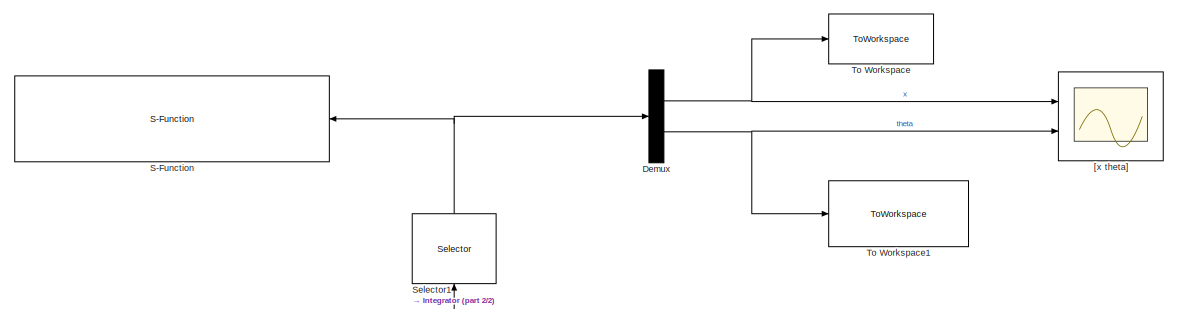
[diagram: root canvas - part 1/2, top right region]
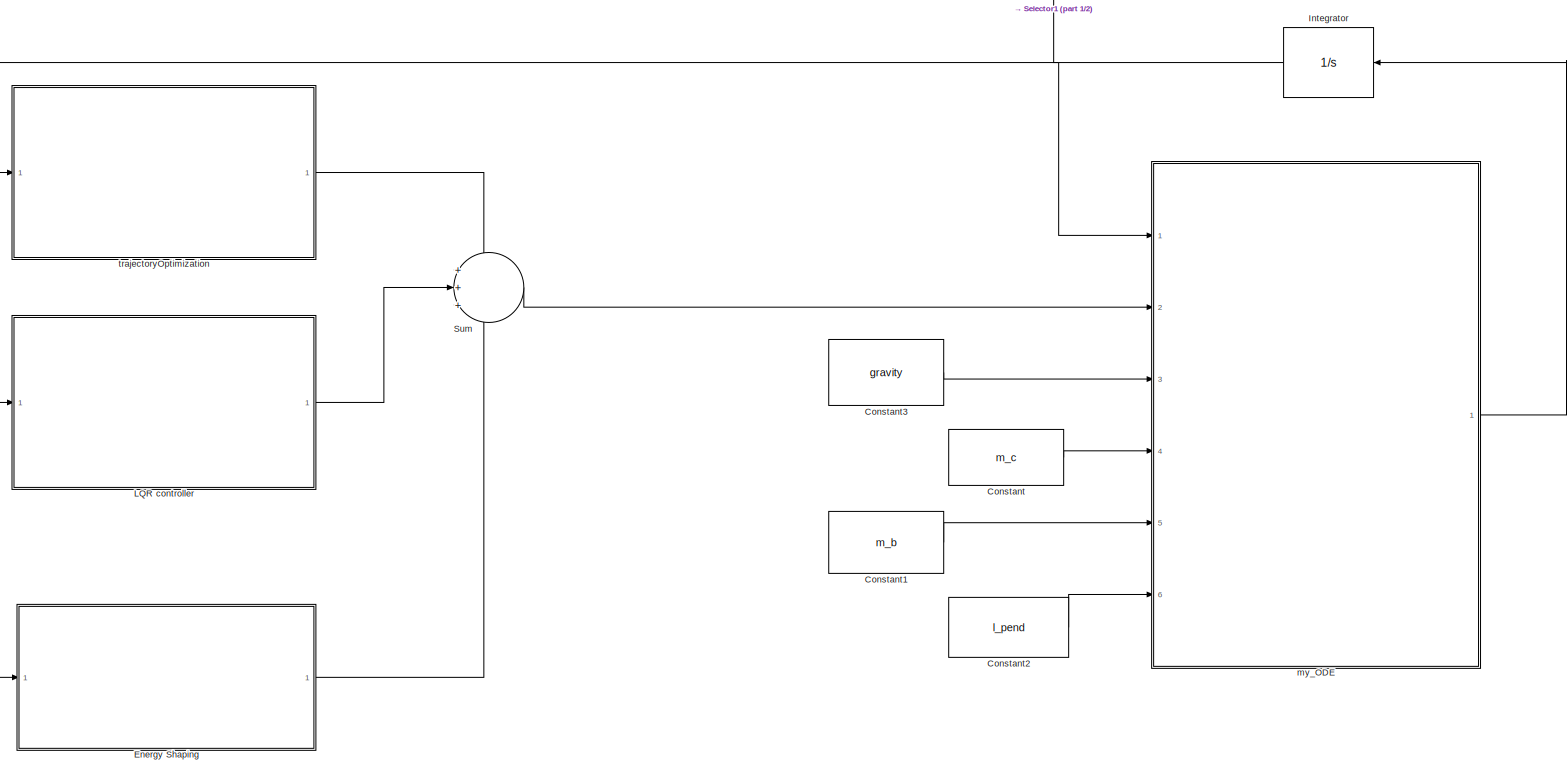
[diagram: root canvas - part 2/2, full width, middle band]
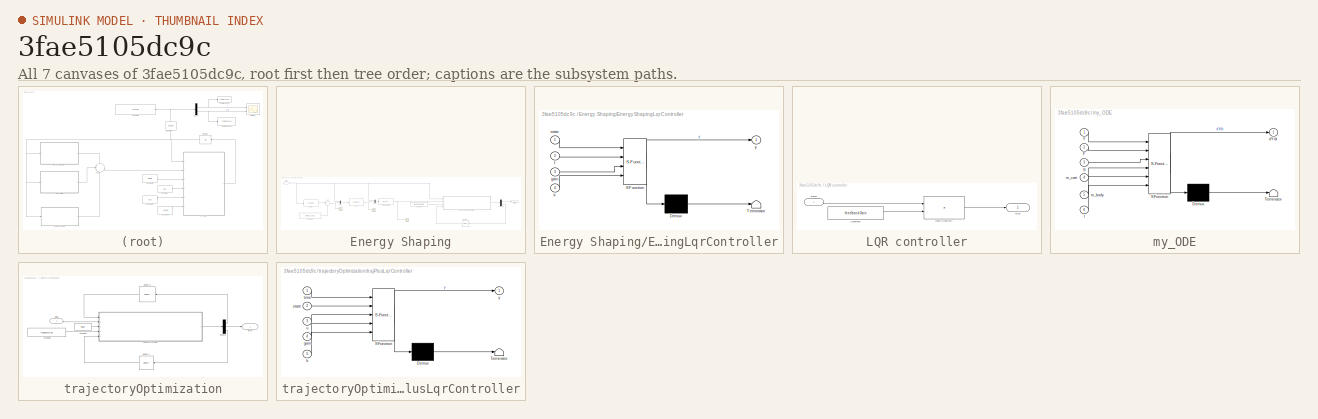
[diagram: thumbnail index - all 7 canvases of the model, root first then tree order]
MODEL slx_3fae5105dc9c
KIND model
CONFIG AbsTol = auto
CONFIG FixedStep = 4/149
CONFIG MaxStep = 0.0001
CONFIG MinStep = auto
CONFIG RelTol = 1e-3
CONFIG SampleTimeConstraint = Unconstrained
CONFIG Solver = ode45
CONFIG SolverMode = Auto
CONFIG SolverName = ode45
CONFIG StartTime = 0.0
CONFIG StopTime = 20
BLOCK [Constant] Constant
  Value = m_c
BLOCK [Constant] Constant1
  Value = m_b
BLOCK [Constant] Constant2
  Value = l_pend
BLOCK [Constant] Constant3
  Value = gravity
BLOCK [Demux] Demux
  DisplayOption = bar
  Outputs = 2
  Ports = [1, 2]
BLOCK [SubSystem] Energy Shaping
  Commented = on
  Ports = [1, 1]
  RequestExecContextInheritance = off
  Variant = off
BLOCK [Constant] Energy Shaping/Constant4
  Value = Energy_desired
BLOCK [Constant] Energy Shaping/Constant5
  Value = feedbackGain
BLOCK [Demux] Energy Shaping/Demux1
  DisplayOption = bar
  Outputs = 2
  Ports = [1, 2]
BLOCK [Fcn] Energy Shaping/Energy
  Expr = (m_b*u(4)^2*l_pend^2)/2 - m_b*cos(u(3))*u(4)*u(2)*l_pend \n+ (m_b*u(2)^2)/2 - m_b*gravity*l_pend*cos(u(3))
BLOCK [SubSystem] Energy Shaping/EnergyShapingLqrController
  ErrorFcn = Stateflow.Translate.translate
  PermitHierarchicalResolution = ExplicitOnly
  Ports = [4, 1]
  RequestExecContextInheritance = off
  SFBlockType = MATLAB Function
  TreatAsAtomicUnit = on
  Variant = off
BLOCK [Demux] Energy Shaping/EnergyShapingLqrController/ Demux 
  Outputs = 1
  Ports = [1, 1]
BLOCK [S-Function] Energy Shaping/EnergyShapingLqrController/ SFunction 
  EnableBusSupport = on
  FunctionName = sf_sfun
  PortCounts = [4 2]
  Ports = [4, 2]
  SFunctionDeploymentMode = off
  Tag = Stateflow S-Function cartPole 3
BLOCK [Terminator] Energy Shaping/EnergyShapingLqrController/ Terminator 
BLOCK [Inport] Energy Shaping/EnergyShapingLqrController/f
  IconDisplay = Port number
  Port = 2
BLOCK [Inport] Energy Shaping/EnergyShapingLqrController/gain
  IconDisplay = Port number
  Port = 3
BLOCK [Inport] Energy Shaping/EnergyShapingLqrController/k
  IconDisplay = Port number
  Port = 4
BLOCK [Inport] Energy Shaping/EnergyShapingLqrController/state
  IconDisplay = Port number
BLOCK [Outport] Energy Shaping/EnergyShapingLqrController/y
  IconDisplay = Port number
BLOCK [Memory] Energy Shaping/Memory1
  X0 = 1
BLOCK [Mux] Energy Shaping/Mux
  DisplayOption = bar
  Inputs = 2
  Ports = [2, 1]
BLOCK [Mux] Energy Shaping/Mux1
  DisplayOption = bar
  Inputs = 2
  Ports = [2, 1]
BLOCK [Scope] Energy Shaping/Scope
  Ports = [1]
  ScopeSpecificationString = Simulink.scopes.TimeScopeBlockCfg('CurrentConfiguration', extmgr.ConfigurationSet(extmgr.Configuration('Core','General UI',true),extmgr.Configuration('Core','Source UI',true),extmgr.Configuration('Sources','WiredSimulink',true,'DataLoggingVariableName','ScopeData1'),extmgr.Configuration('Visuals','Time Domain',true,'SerializedDisplays',{struct('MinYLimReal','-18.54663','MaxYLimReal','20.65936','YL...<+1406ch>
BLOCK [Scope] Energy Shaping/Scope1
  Ports = [1]
  ScopeSpecificationString = Simulink.scopes.TimeScopeBlockCfg('CurrentConfiguration', extmgr.ConfigurationSet(extmgr.Configuration('Core','General UI',true),extmgr.Configuration('Core','Source UI',true),extmgr.Configuration('Sources','WiredSimulink',true,'DataLoggingVariableName','ScopeData2'),extmgr.Configuration('Visuals','Time Domain',true,'SerializedDisplays',{struct('MinYLimReal','-0.98403','MaxYLimReal','-0.95377','YLa...<+1408ch>
BLOCK [Scope] Energy Shaping/Scope2
  Ports = [1]
  ScopeSpecificationString = Simulink.scopes.TimeScopeBlockCfg('CurrentConfiguration', extmgr.ConfigurationSet(extmgr.Configuration('Core','General UI',true),extmgr.Configuration('Core','Source UI',true),extmgr.Configuration('Sources','WiredSimulink',true,'DataLoggingVariableName','ScopeData3'),extmgr.Configuration('Visuals','Time Domain',true,'SerializedDisplays',{struct('MinYLimReal','-0.02489','MaxYLimReal','0.02353','YLab...<+1406ch>
BLOCK [Sum] Energy Shaping/Sum
  IconShape = round
  InputSameDT = off
  Inputs = |+-
  OutDataTypeStr = Inherit: Inherit via internal rule
  Ports = [2, 1]
  SaturateOnIntegerOverflow = off
BLOCK [Fcn] Energy Shaping/ddx
  Expr = k_E*u(4)*cos(u(3))*u(5) - kp*u(1) - kd*u(2)
BLOCK [Outport] Energy Shaping/force
  IconDisplay = Port number
BLOCK [Fcn] Energy Shaping/forceCalculation
  Expr = (m_b + m_c - m_b*cos(u(3))^2)*u(5) - gravity*m_b*sin(u(3))*cos(u(3)) + l_pend*m_b*u(4)^2*sin(u(3))
BLOCK [Inport] Energy Shaping/states
  IconDisplay = Port number
BLOCK [Integrator] Integrator
  InitialCondition = [x_initial, dx_initial, theta_initial, dtheta_initial]
  Ports = [1, 1]
BLOCK [SubSystem] LQR controller
  Ports = [1, 1]
  RequestExecContextInheritance = off
  Variant = off
BLOCK [Constant] LQR controller/Constant5
  Value = feedbackGain
BLOCK [Product] LQR controller/Matrix Multiply
  InputSameDT = off
  Multiplication = Matrix(*)
  OutDataTypeStr = Inherit: Inherit via internal rule
  Ports = [2, 1]
  RndMeth = Floor
  SaturateOnIntegerOverflow = off
BLOCK [Outport] LQR controller/force
  IconDisplay = Port number
BLOCK [Inport] LQR controller/states
  IconDisplay = Port number
BLOCK [S-Function] S-Function
  EnableBusSupport = off
  FunctionName = animation_cartPole
  Parameters = 0.01
  Ports = [1]
  SFunctionDeploymentMode = off
BLOCK [Selector] Selector1
  IndexOptions = Index vector (dialog)
  Indices = [1 3]
  InputPortWidth = 4
  OutputSizes = 1
  Ports = [1, 1]
BLOCK [Sum] Sum
  IconShape = round
  InputSameDT = off
  Inputs = +++
  OutDataTypeStr = Inherit: Inherit via internal rule
  Ports = [3, 1]
  SaturateOnIntegerOverflow = off
BLOCK [ToWorkspace] To Workspace
  FixptAsFi = on
  MaxDataPoints = inf
  Ports = [1]
  SampleTime = -1
  Save2DSignal = 3-D array (concatenate along third dimension)
  SaveFormat = Timeseries
  VariableName = xOut
BLOCK [ToWorkspace] To Workspace1
  FixptAsFi = on
  MaxDataPoints = inf
  Ports = [1]
  SampleTime = -1
  Save2DSignal = 3-D array (concatenate along third dimension)
  SaveFormat = Timeseries
  VariableName = thetaOut
BLOCK [Scope] [x theta]
  NumInputPorts = 2
  Ports = [2]
  ScopeSpecificationString = Simulink.scopes.TimeScopeBlockCfg('CurrentConfiguration', extmgr.ConfigurationSet(extmgr.Configuration('Core','General UI',true),extmgr.Configuration('Core','Source UI',true),extmgr.Configuration('Sources','WiredSimulink',true),extmgr.Configuration('Visuals','Time Domain',true,'SerializedDisplays',{struct('MinYLimReal','-15.12083','MaxYLimReal','9.43899','YLabelReal','','MinYLimMag','0.00000','Max...<+1377ch>
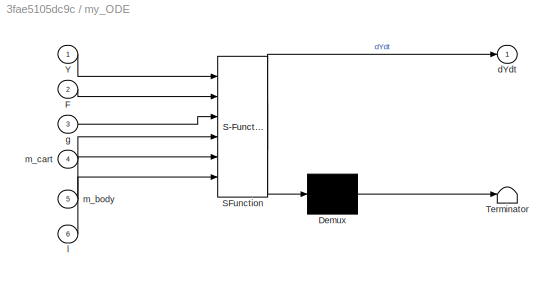
BLOCK [SubSystem] my_ODE
  ErrorFcn = Stateflow.Translate.translate
  PermitHierarchicalResolution = ExplicitOnly
  Ports = [6, 1]
  RequestExecContextInheritance = off
  SFBlockType = MATLAB Function
  TreatAsAtomicUnit = on
  Variant = off
BLOCK [Demux] my_ODE/ Demux 
  Outputs = 1
  Ports = [1, 1]
BLOCK [S-Function] my_ODE/ SFunction 
  EnableBusSupport = on
  FunctionName = sf_sfun
  PortCounts = [6 2]
  Ports = [6, 2]
  SFunctionDeploymentMode = off
  Tag = Stateflow S-Function cartPole 2
BLOCK [Terminator] my_ODE/ Terminator 
BLOCK [Inport] my_ODE/F
  IconDisplay = Port number
  Port = 2
BLOCK [Inport] my_ODE/Y
  IconDisplay = Port number
BLOCK [Outport] my_ODE/dYdt
  IconDisplay = Port number
BLOCK [Inport] my_ODE/g
  IconDisplay = Port number
  Port = 3
BLOCK [Inport] my_ODE/l
  IconDisplay = Port number
  Port = 6
BLOCK [Inport] my_ODE/m_body
  IconDisplay = Port number
  Port = 5
BLOCK [Inport] my_ODE/m_cart
  IconDisplay = Port number
  Port = 4
BLOCK [SubSystem] trajectoryOptimization
  Commented = on
  Ports = [1, 1]
  RequestExecContextInheritance = off
  Variant = off
BLOCK [Constant] trajectoryOptimization/Constant4
  Value = input
BLOCK [Constant] trajectoryOptimization/Constant5
  Value = feedbackGain
BLOCK [Demux] trajectoryOptimization/Demux1
  DisplayOption = bar
  Outputs = 3
  Ports = [1, 3]
BLOCK [Memory] trajectoryOptimization/Memory1
  X0 = 1
BLOCK [Memory] trajectoryOptimization/Memory2
BLOCK [Outport] trajectoryOptimization/force
  IconDisplay = Port number
BLOCK [Inport] trajectoryOptimization/states
  IconDisplay = Port number
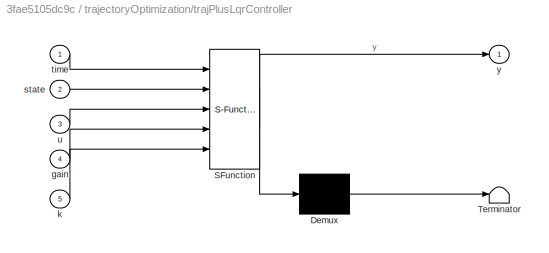
BLOCK [SubSystem] trajectoryOptimization/trajPlusLqrController
  ErrorFcn = Stateflow.Translate.translate
  PermitHierarchicalResolution = ExplicitOnly
  Ports = [5, 1]
  RequestExecContextInheritance = off
  SFBlockType = MATLAB Function
  TreatAsAtomicUnit = on
  Variant = off
BLOCK [Demux] trajectoryOptimization/trajPlusLqrController/ Demux 
  Outputs = 1
  Ports = [1, 1]
BLOCK [S-Function] trajectoryOptimization/trajPlusLqrController/ SFunction 
  EnableBusSupport = on
  FunctionName = sf_sfun
  PortCounts = [5 2]
  Ports = [5, 2]
  SFunctionDeploymentMode = off
  Tag = Stateflow S-Function cartPole 1
BLOCK [Terminator] trajectoryOptimization/trajPlusLqrController/ Terminator 
BLOCK [Inport] trajectoryOptimization/trajPlusLqrController/gain
  IconDisplay = Port number
  Port = 4
BLOCK [Inport] trajectoryOptimization/trajPlusLqrController/k
  IconDisplay = Port number
  Port = 5
BLOCK [Inport] trajectoryOptimization/trajPlusLqrController/state
  IconDisplay = Port number
  Port = 2
BLOCK [Inport] trajectoryOptimization/trajPlusLqrController/time
  IconDisplay = Port number
BLOCK [Inport] trajectoryOptimization/trajPlusLqrController/u
  IconDisplay = Port number
  Port = 3
BLOCK [Outport] trajectoryOptimization/trajPlusLqrController/y
  IconDisplay = Port number
LINE Constant1:1 -> my_ODE:5
LINE Constant2:1 -> my_ODE:6
LINE Constant3:1 -> my_ODE:3
LINE Constant:1 -> my_ODE:4
NET Demux:1 -> To Workspace:1, [x theta]:1
NET Demux:2 -> To Workspace1:1, [x theta]:2
LINE Energy Shaping/Constant4:1 -> Energy Shaping/Sum:2
LINE Energy Shaping/Constant5:1 -> Energy Shaping/EnergyShapingLqrController:3
LINE Energy Shaping/Demux1:1 -> Energy Shaping/force:1
LINE Energy Shaping/Demux1:2 -> Energy Shaping/Memory1:1
LINE Energy Shaping/Energy:1 -> Energy Shaping/Sum:1
LINE Energy Shaping/EnergyShapingLqrController:1 -> Energy Shaping/Demux1:1
LINE Energy Shaping/Memory1:1 -> Energy Shaping/EnergyShapingLqrController:4
LINE Energy Shaping/Mux1:1 -> Energy Shaping/forceCalculation:1
LINE Energy Shaping/Mux:1 -> Energy Shaping/ddx:1
NET Energy Shaping/Sum:1 -> Energy Shaping/Mux:2, Energy Shaping/Scope1:1
NET Energy Shaping/ddx:1 -> Energy Shaping/Mux1:2, Energy Shaping/Scope2:1
NET Energy Shaping/forceCalculation:1 -> Energy Shaping/EnergyShapingLqrController:2, Energy Shaping/Scope:1
NET Energy Shaping/states:1 -> Energy Shaping/Energy:1, Energy Shaping/EnergyShapingLqrController:1, Energy Shaping/Mux1:1, Energy Shaping/Mux:1
LINE Energy Shaping:1 -> Sum:3
NET Integrator:1 -> Energy Shaping:1, LQR controller:1, Selector1:1, my_ODE:1, trajectoryOptimization:1
LINE LQR controller/Constant5:1 -> LQR controller/Matrix Multiply:2
LINE LQR controller/Matrix Multiply:1 -> LQR controller/force:1
LINE LQR controller/states:1 -> LQR controller/Matrix Multiply:1
LINE LQR controller:1 -> Sum:2
NET Selector1:1 -> Demux:1, S-Function:1
LINE Sum:1 -> my_ODE:2
LINE my_ODE:1 -> Integrator:1
LINE trajectoryOptimization/Constant4:1 -> trajectoryOptimization/trajPlusLqrController:3
LINE trajectoryOptimization/Constant5:1 -> trajectoryOptimization/trajPlusLqrController:4
LINE trajectoryOptimization/Demux1:1 -> trajectoryOptimization/Memory2:1
LINE trajectoryOptimization/Demux1:2 -> trajectoryOptimization/force:1
LINE trajectoryOptimization/Demux1:3 -> trajectoryOptimization/Memory1:1
LINE trajectoryOptimization/Memory1:1 -> trajectoryOptimization/trajPlusLqrController:5
LINE trajectoryOptimization/Memory2:1 -> trajectoryOptimization/trajPlusLqrController:1
LINE trajectoryOptimization/states:1 -> trajectoryOptimization/trajPlusLqrController:2
LINE trajectoryOptimization/trajPlusLqrController:1 -> trajectoryOptimization/Demux1:1
LINE trajectoryOptimization:1 -> Sum:1
note: NET lines group one-source signal fan-out (src -> all destinations, sorted); 1:1 wires keep LINE
CHART trajectoryOptimization/trajPlusLqrController states=1 transitions=1
  STATE_LABEL 'eML_blk_kernel()'
  STATE_LABEL "SCRIPT:\nfunction y = trajPlusLqrController(time, state, u, gain, k)\n%#codegen\ntime = time + 0.2;\ncoder.extrinsic('wrapToPi');\nstate(3) = wrapToPi(state(3));\nif (abs(state(3)-0)<0.2)\n    k=2;\n% elseif (state(3)>pi && (2*pi - state(3))<0.2)\n%     k=2;\nend\n\nif (k==2)\n    \n    force = gain(1)*state(1)+ gain(2)*state(2) + gain(3)*state(3) + gain(4)*state(4);\nelse\n%     time\n    force = u(floor(time*4/1...<+34ch>"
CHART my_ODE states=1 transitions=1
  STATE_LABEL 'eML_blk_kernel()'
  STATE_LABEL 'SCRIPT:\nfunction dYdt = my_ODE(Y,F,g,m_cart,m_body,l)\n%#codegen\n\n%    This function was generated by the Symbolic Math Toolbox version 7.0.\n%    18-Feb-2017 18:54:45\n\nt3 = Y(3);\nt2 = cos(t3);\nt4 = sin(t3);\nt5 = Y(4);\nt6 = t2.^2;\nt7 = m_body+m_cart-m_body.*t6;\nt8 = 1.0./t7;\nt9 = t5.^2;\ndYdt = [Y(2);t8.*(F+g.*m_body.*t2.*t4-l.*m_body.*t4.*t9);t5;(t8.*(F.*t2+g.*m_body.*t4+g.*m_cart.*t4-l.*m_body.*t2....<+15ch>'
CHART Energy Shaping/EnergyShapingLqrController states=1 transitions=1
  STATE_LABEL 'eML_blk_kernel()'
  STATE_LABEL "SCRIPT:\nfunction y = EnergyShapingLqrController(state, f, gain, k)\n%#codegen\n\ncoder.extrinsic('wrapToPi');\n% state(3) = wrapToPi(state(3));\nif (abs(state(3)-0)<0.2)\n    k=2;\n% elseif (state(3)>pi && (2*pi - state(3))<0.2)\n%     k=2;\nend\n\nif (k==2)\n    \n    force = gain(1)*state(1)+ gain(2)*state(2) + gain(3)*state(3) + gain(4)*state(4);\nelse\n%     time\n    force = f;\nend\n\ny = [force, k];"
